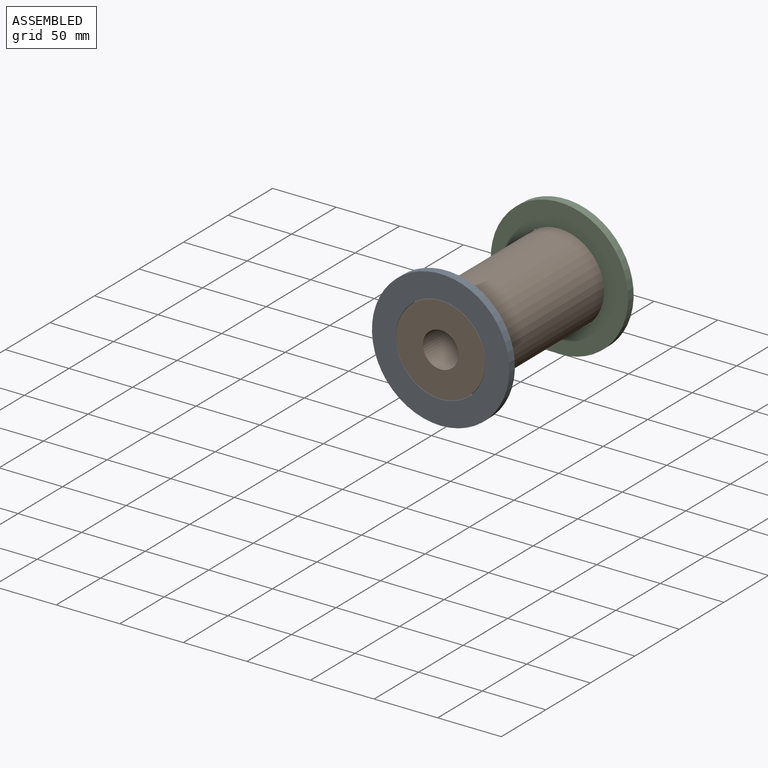
[diagram: assembled view]
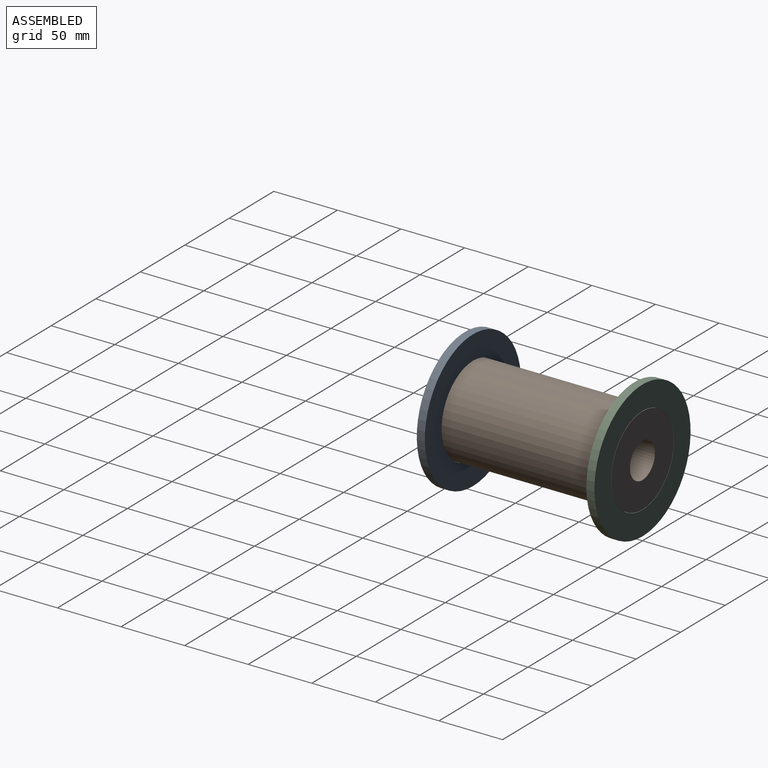
[diagram: assembled view, second angle]
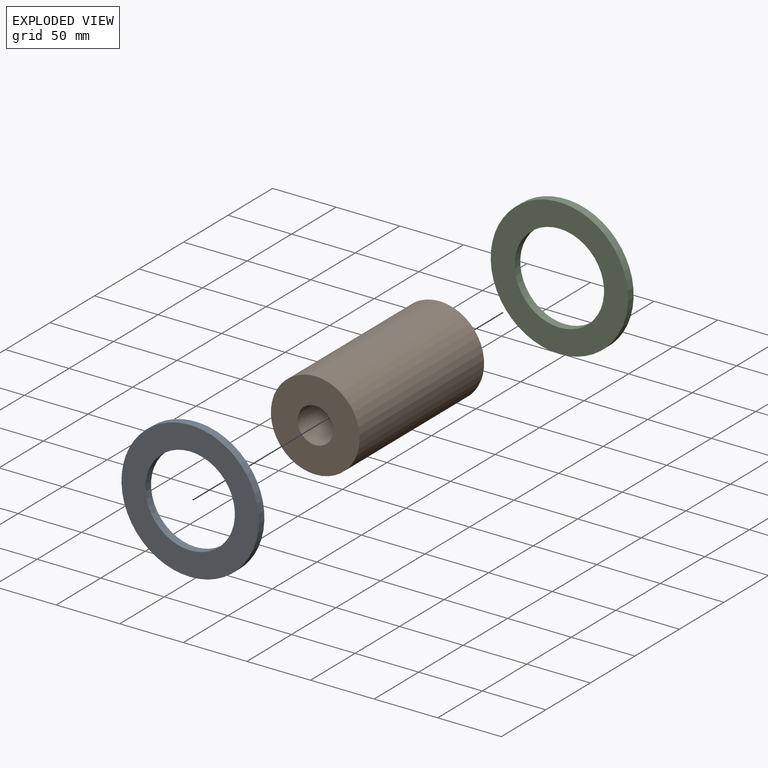
[diagram: exploded view]
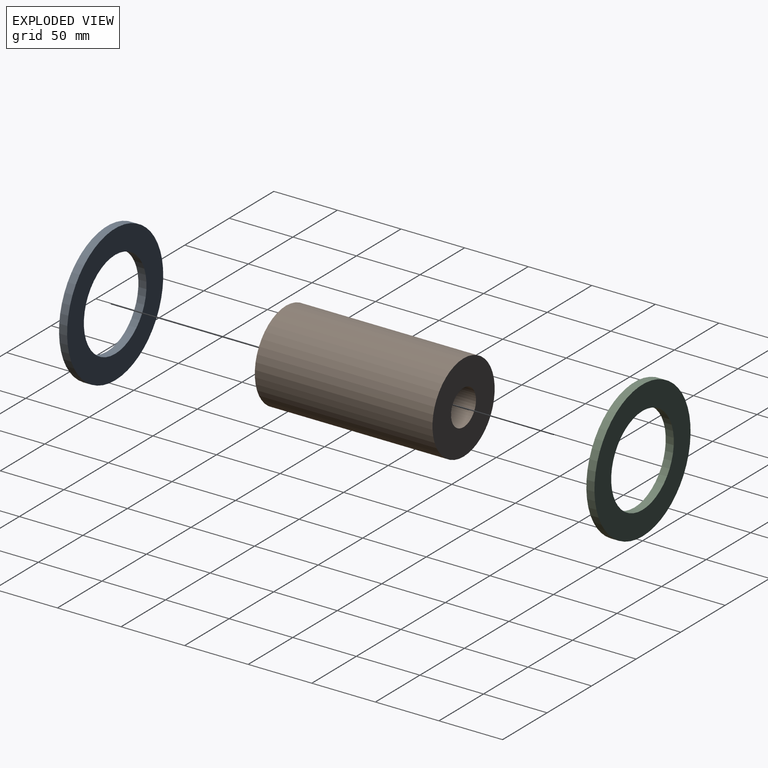
[diagram: exploded view, second angle]
ASSEMBLY  parts=3 mates=4
PART A: 4 faces, bbox 108x6.4x108 mm
  f0: cylinder r=35.18mm len=70.36mm, axis (0,1,0), area 1403.6mm2, adj f2,f3
  f1: cylinder r=53.98mm len=107.95mm, axis (0,1,0), area 2153.5mm2, adj f2,f3
  f2: plane 107.95x107.95mm, normal (0,-1,0), area 5264.5mm2, adj f0,f1
  f3: plane 107.95x107.95mm, normal (0,1,0), area 5264.5mm2, adj f0,f1
PART B: 4 faces, bbox 69.9x139.7x69.9 mm
  f0: cylinder r=13.97mm len=139.7mm, axis (0,1,0), area 12262.3mm2, adj f2,f3
  f1: cylinder r=34.92mm len=139.7mm, axis (0,1,0), area 30655.8mm2, adj f2,f3
  f2: plane 69.85x69.85mm, normal (0,-1,0), area 3218.9mm2, adj f0,f1
  f3: plane 69.85x69.85mm, normal (0,1,0), area 3218.9mm2, adj f0,f1
PART C: same geometry as A
PLACE A t=(0,-133.35,0)mm
PLACE B at identity fixed
PLACE C at identity
MATE planar B.f1 <-> A.f1  axis (0,-1,0) through (0,-139.7,0)mm
MATE cylindrical B.f1 <-> A.f0  axis (0,1,0) through (0,-69.85,0)mm
MATE planar B.f1 <-> C.f1  axis (0,1,0) through (0,0,0)mm
MATE cylindrical C.f0 <-> B.f1  axis (0,-1,0) through (0,-6.35,0)mm
